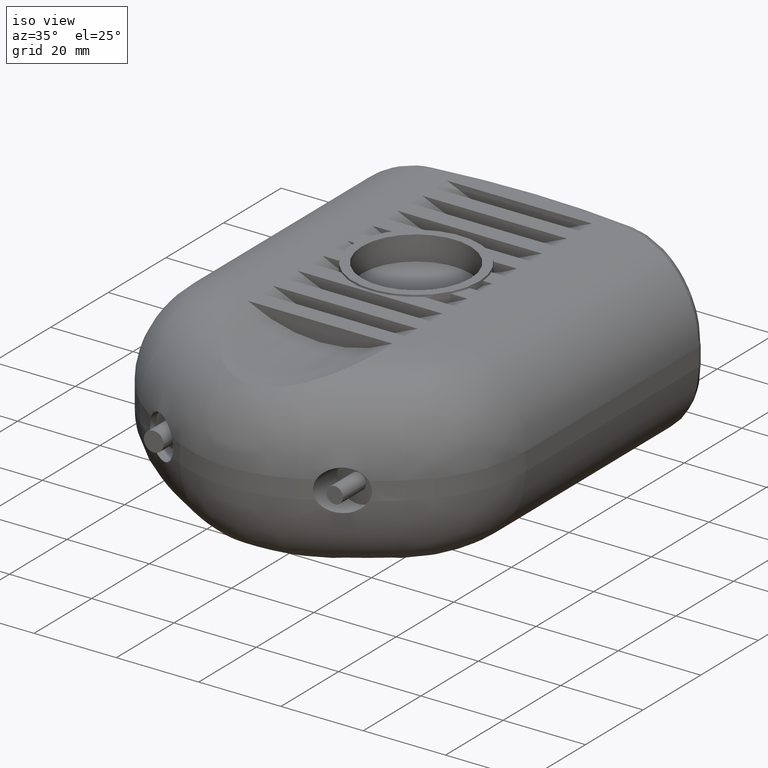
[diagram: clean part render]
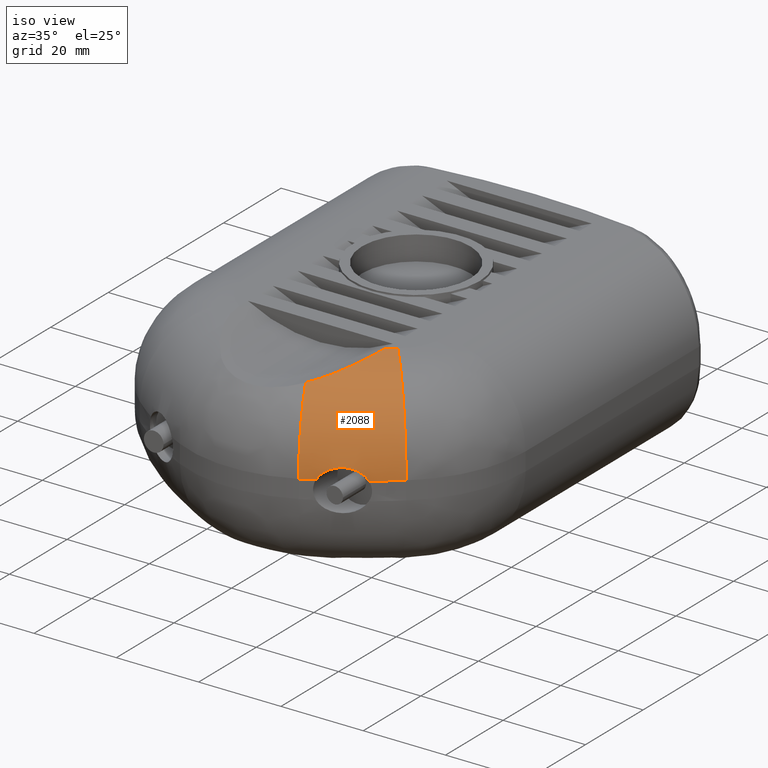
[diagram: same view with one face highlighted and labeled with its STEP entity id]
A machine part, iso view. The second image highlights one B-rep face of the part: STEP entity #2088.
In plain terms, the highlighted toroidal blend (fillet) surface has major radius 71.9257 mm and minor (blend) radius 19.8 mm.
Its self-contained STEP definition (entity closure, byte-faithful):
#288=TOROIDAL_SURFACE('',#2316,71.925677975145,19.8);
#292=B_SPLINE_CURVE_WITH_KNOTS('',3,(#3014,#3015,#3016,#3017,#3018,#3019,
#3020,#3021,#3022,#3023,#3024,#3025,#3026,#3027,#3028,#3029,#3030,#3031,
#3032,#3033,#3034,#3035),.UNSPECIFIED.,.F.,.F.,(4,2,2,2,2,2,2,2,2,2,4),
(-1.25054586156561,-1.12775462378147,-0.970765951944766,-0.834700447121397,
-0.719028132602244,-0.651550992434191,-0.594586056198517,-0.528494382407903,
-0.417506553819096,-0.181833858244829,0.),.UNSPECIFIED.);
#320=B_SPLINE_CURVE_WITH_KNOTS('',3,(#3888,#3889,#3890,#3891,#3892,#3893,
#3894,#3895,#3896,#3897),.UNSPECIFIED.,.F.,.F.,(4,2,2,2,4),(-2.62884891899792,
-2.41289782889242,-2.01795132128398,-0.946666958526628,-0.613044863253491),
 .UNSPECIFIED.);
#529=FACE_OUTER_BOUND('',#681,.T.);
#681=EDGE_LOOP('',(#1704,#1705,#1706,#1707,#1708,#1709,#1710));
#733=CIRCLE('',#2140,91.725677975145);
#818=CIRCLE('',#2317,91.725677975145);
#819=CIRCLE('',#2318,19.8);
#820=CIRCLE('',#2319,71.925677975145);
#821=CIRCLE('',#2320,19.8);
#854=VERTEX_POINT('',#3012);
#855=VERTEX_POINT('',#3013);
#869=VERTEX_POINT('',#3179);
#1016=VERTEX_POINT('',#3886);
#1017=VERTEX_POINT('',#3887);
#1020=VERTEX_POINT('',#3918);
#1021=VERTEX_POINT('',#3920);
#1052=EDGE_CURVE('',#854,#855,#292,.T.);
#1068=EDGE_CURVE('',#869,#854,#733,.T.);
#1282=EDGE_CURVE('',#1016,#1017,#320,.T.);
#1288=EDGE_CURVE('',#855,#1020,#818,.T.);
#1289=EDGE_CURVE('',#1020,#1021,#819,.T.);
#1290=EDGE_CURVE('',#1021,#1016,#820,.T.);
#1291=EDGE_CURVE('',#869,#1017,#821,.T.);
#1704=ORIENTED_EDGE('',*,*,#1052,.T.);
#1705=ORIENTED_EDGE('',*,*,#1288,.T.);
#1706=ORIENTED_EDGE('',*,*,#1289,.T.);
#1707=ORIENTED_EDGE('',*,*,#1290,.T.);
#1708=ORIENTED_EDGE('',*,*,#1282,.T.);
#1709=ORIENTED_EDGE('',*,*,#1291,.F.);
#1710=ORIENTED_EDGE('',*,*,#1068,.T.);
#2088=ADVANCED_FACE('',(#529),#288,.T.);
#2140=AXIS2_PLACEMENT_3D('',#3180,#2412,#2413);
#2316=AXIS2_PLACEMENT_3D('',#3917,#2878,#2879);
#2317=AXIS2_PLACEMENT_3D('',#3919,#2880,#2881);
#2318=AXIS2_PLACEMENT_3D('',#3921,#2882,#2883);
#2319=AXIS2_PLACEMENT_3D('',#3922,#2884,#2885);
#2320=AXIS2_PLACEMENT_3D('',#3923,#2886,#2887);
#2412=DIRECTION('center_axis',(0.,0.,1.));
#2413=DIRECTION('ref_axis',(0.546503424238897,-0.83745686891634,0.));
#2878=DIRECTION('center_axis',(0.,0.,1.));
#2879=DIRECTION('ref_axis',(1.,0.,0.));
#2880=DIRECTION('center_axis',(0.,0.,1.));
#2881=DIRECTION('ref_axis',(0.546503424238897,-0.83745686891634,0.));
#2882=DIRECTION('center_axis',(-0.767931411367808,-0.640532081503063,0.));
#2883=DIRECTION('ref_axis',(0.640532081503063,-0.767931411367808,0.));
#2884=DIRECTION('center_axis',(0.,0.,-1.));
#2885=DIRECTION('ref_axis',(0.546503424238897,-0.83745686891634,0.));
#2886=DIRECTION('center_axis',(-0.895529955021431,-0.445001235570548,0.));
#2887=DIRECTION('ref_axis',(0.445001235570548,-0.895529955021431,0.));
#3012=CARTESIAN_POINT('',(17.5100111358712,-15.732669905124,2.2));
#3013=CARTESIAN_POINT('',(26.4899888641288,-10.141637812049,2.2));
#3014=CARTESIAN_POINT('Ctrl Pts',(17.5100111358713,-15.7326699051239,2.20000000000001));
#3015=CARTESIAN_POINT('Ctrl Pts',(17.6852599186903,-15.6371164357779,2.55766594695888));
#3016=CARTESIAN_POINT('Ctrl Pts',(17.898732727696,-15.5089615820081,2.88525753385702));
#3017=CARTESIAN_POINT('Ctrl Pts',(18.4506135507642,-15.1643513907716,3.55514247670999));
#3018=CARTESIAN_POINT('Ctrl Pts',(18.8055000656417,-14.9344653253785,3.87410675923382));
#3019=CARTESIAN_POINT('Ctrl Pts',(19.518707292766,-14.4705215861744,4.35931117581095));
#3020=CARTESIAN_POINT('Ctrl Pts',(19.8710413081513,-14.2405830837221,4.54082249959585));
#3021=CARTESIAN_POINT('Ctrl Pts',(20.5448953393818,-13.8045467486656,4.79501671531593));
#3022=CARTESIAN_POINT('Ctrl Pts',(20.8638950582722,-13.5995197390461,4.88024014361839));
#3023=CARTESIAN_POINT('Ctrl Pts',(21.3760763037086,-13.2740497294745,4.96460405847956));
#3024=CARTESIAN_POINT('Ctrl Pts',(21.5664481268705,-13.1538514290608,4.98484085017355));
#3025=CARTESIAN_POINT('Ctrl Pts',(21.9188780214484,-12.9329278064418,5.00195038884085));
#3026=CARTESIAN_POINT('Ctrl Pts',(22.0807678762976,-12.8320588872643,5.00197408964478));
#3027=CARTESIAN_POINT('Ctrl Pts',(22.4304720530944,-12.6155173413165,4.98498280547165));
#3028=CARTESIAN_POINT('Ctrl Pts',(22.6182907170882,-12.5000603708286,4.96523730047144));
#3029=CARTESIAN_POINT('Ctrl Pts',(23.1190746060798,-12.194329876038,4.88352463082488));
#3030=CARTESIAN_POINT('Ctrl Pts',(23.4301458177439,-12.006697698214,4.80203174603616));
#3031=CARTESIAN_POINT('Ctrl Pts',(24.3786605293221,-11.4392245812874,4.45136167844819));
#3032=CARTESIAN_POINT('Ctrl Pts',(24.9835354191215,-11.0850542331295,4.0767841301844));
#3033=CARTESIAN_POINT('Ctrl Pts',(25.8974378312976,-10.5328568770803,3.18127561464989));
#3034=CARTESIAN_POINT('Ctrl Pts',(26.2352964591518,-10.3213867320925,2.71980275551111));
#3035=CARTESIAN_POINT('Ctrl Pts',(26.4899888641287,-10.141637812049,2.19999999999999));
#3179=CARTESIAN_POINT('',(14.4180400324857,-17.3430922713918,2.2));
#3180=CARTESIAN_POINT('Origin',(-26.4,64.8,2.2));
#3886=CARTESIAN_POINT('',(17.6,7.90269644188526,22.));
#3887=CARTESIAN_POINT('',(10.2475753373939,-8.95036038150026,19.0313025019749));
#3888=CARTESIAN_POINT('Ctrl Pts',(17.6,7.90269644188526,22.));
#3889=CARTESIAN_POINT('Ctrl Pts',(17.6,7.24845367996034,22.));
#3890=CARTESIAN_POINT('Ctrl Pts',(17.5619526781786,6.59246042338483,21.9796466055002));
#3891=CARTESIAN_POINT('Ctrl Pts',(17.3695712024854,4.76898920456805,21.8778352485847));
#3892=CARTESIAN_POINT('Ctrl Pts',(17.141791105814,3.59349566213186,21.757902207659));
#3893=CARTESIAN_POINT('Ctrl Pts',(16.0026882755807,-0.634236830987775,21.1836924204612));
#3894=CARTESIAN_POINT('Ctrl Pts',(14.524688036815,-3.7159334276286,20.4617652129332));
#3895=CARTESIAN_POINT('Ctrl Pts',(11.7314846668392,-7.35394714811173,19.4806176889147));
#3896=CARTESIAN_POINT('Ctrl Pts',(11.0143442448562,-8.17562058898308,19.2497569552123));
#3897=CARTESIAN_POINT('Ctrl Pts',(10.2475753373939,-8.95036038150026,19.0313025019749));
#3917=CARTESIAN_POINT('Origin',(-26.4,64.8,2.2));
#3918=CARTESIAN_POINT('',(32.3532394406992,-5.63902934612218,2.2));
#3919=CARTESIAN_POINT('Origin',(-26.4,64.8,2.2));
#3920=CARTESIAN_POINT('',(19.6707042269386,9.56601259896042,22.));
#3921=CARTESIAN_POINT('Origin',(19.6707042269386,9.56601259896042,2.2));
#3922=CARTESIAN_POINT('Origin',(-26.4,64.8,22.));
#3923=CARTESIAN_POINT('Origin',(5.60701556818889,0.388400838032511,2.2));